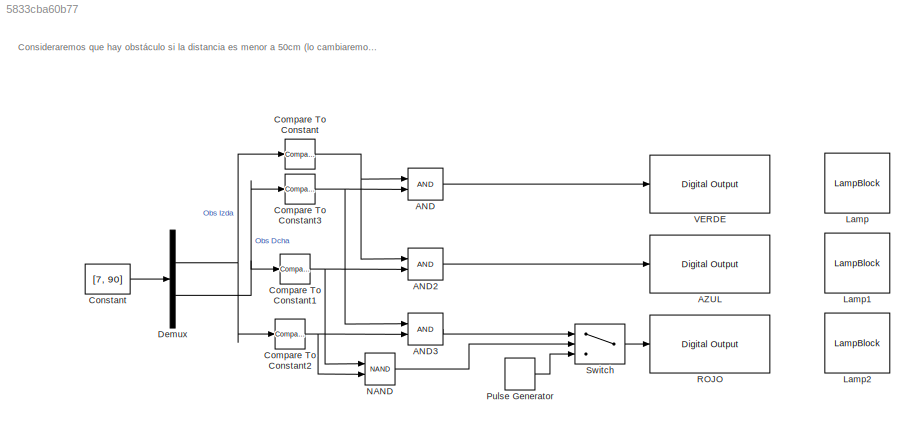
MODEL slx_5833cba60b77
KIND model
CONFIG AbsTol = auto
CONFIG EnableMultiTasking = on
CONFIG FixedStep = auto
CONFIG MaxStep = auto
CONFIG MinStep = auto
CONFIG RelTol = 1e-3
CONFIG SampleTimeConstraint = Unconstrained
CONFIG SolverName = FixedStepAuto
CONFIG StartTime = 0.0
CONFIG StopTime = inf
BLOCK [Logic] AND
  AllPortsSameDT = off
  IconShape = distinctive
  OutDataTypeStr = boolean
BLOCK [Logic] AND2
  AllPortsSameDT = off
  IconShape = distinctive
  OutDataTypeStr = boolean
BLOCK [Logic] AND3
  AllPortsSameDT = off
  IconShape = distinctive
  OutDataTypeStr = boolean
BLOCK [Reference] AZUL  REF=arduinolib/Digital Output
  SourceBlock = arduinolib/Digital Output
  SourceType = Arduino Digital Output
BLOCK [Reference] Compare To Constant  REF=simulink/Logic and Bit
Operations/Compare
To Constant
  SourceBlock = simulink/Logic and Bit\nOperations/Compare\nTo Constant
  SourceType = Compare To Constant
BLOCK [Reference] Compare To Constant1  REF=simulink/Logic and Bit
Operations/Compare
To Constant
  SourceBlock = simulink/Logic and Bit\nOperations/Compare\nTo Constant
  SourceType = Compare To Constant
BLOCK [Reference] Compare To Constant2  REF=simulink/Logic and Bit
Operations/Compare
To Constant
  SourceBlock = simulink/Logic and Bit\nOperations/Compare\nTo Constant
  SourceType = Compare To Constant
BLOCK [Reference] Compare To Constant3  REF=simulink/Logic and Bit
Operations/Compare
To Constant
  SourceBlock = simulink/Logic and Bit\nOperations/Compare\nTo Constant
  SourceType = Compare To Constant
BLOCK [Constant] Constant
  Value = [7, 90]
BLOCK [Demux] Demux
  Outputs = 2
BLOCK [LampBlock] Lamp
  LabelPosition = Hide
BLOCK [LampBlock] Lamp1
  LabelPosition = Hide
BLOCK [LampBlock] Lamp2
  LabelPosition = Hide
BLOCK [Logic] NAND
  AllPortsSameDT = off
  IconShape = distinctive
  Operator = NAND
  OutDataTypeStr = boolean
BLOCK [DiscretePulseGenerator] Pulse Generator
  Period = 1
  PulseType = Time based
  PulseWidth = 50
BLOCK [Reference] ROJO  REF=arduinolib/Digital Output
  SourceBlock = arduinolib/Digital Output
  SourceType = Arduino Digital Output
BLOCK [Switch] Switch
  Criteria = u2 > Threshold
  InputSameDT = off
  SaturateOnIntegerOverflow = off
BLOCK [Reference] VERDE  REF=arduinolib/Digital Output
  SourceBlock = arduinolib/Digital Output
  SourceType = Arduino Digital Output
ANNOTATION (root): Consideraremos que hay obstáculo si la distancia es menor a 50cm (lo cambiaremos experimentalmente o checkeando la descripción del sensor utilizado)
LINE AND2:1 -> AZUL:1
LINE AND3:1 -> Switch:1
LINE AND:1 -> VERDE:1
NET Compare To Constant1:1 -> AND2:2, NAND:1
NET Compare To Constant2:1 -> AND3:2, NAND:2
NET Compare To Constant3:1 -> AND3:1, AND:2
NET Compare To Constant:1 -> AND2:1, AND:1
LINE Constant:1 -> Demux:1
NET Demux:1 -> Compare To Constant2:1, Compare To Constant:1
NET Demux:2 -> Compare To Constant1:1, Compare To Constant3:1
LINE NAND:1 -> Switch:2
LINE Pulse Generator:1 -> Switch:3
LINE Switch:1 -> ROJO:1
note: NET lines group one-source signal fan-out (src -> all destinations, sorted); 1:1 wires keep LINE
